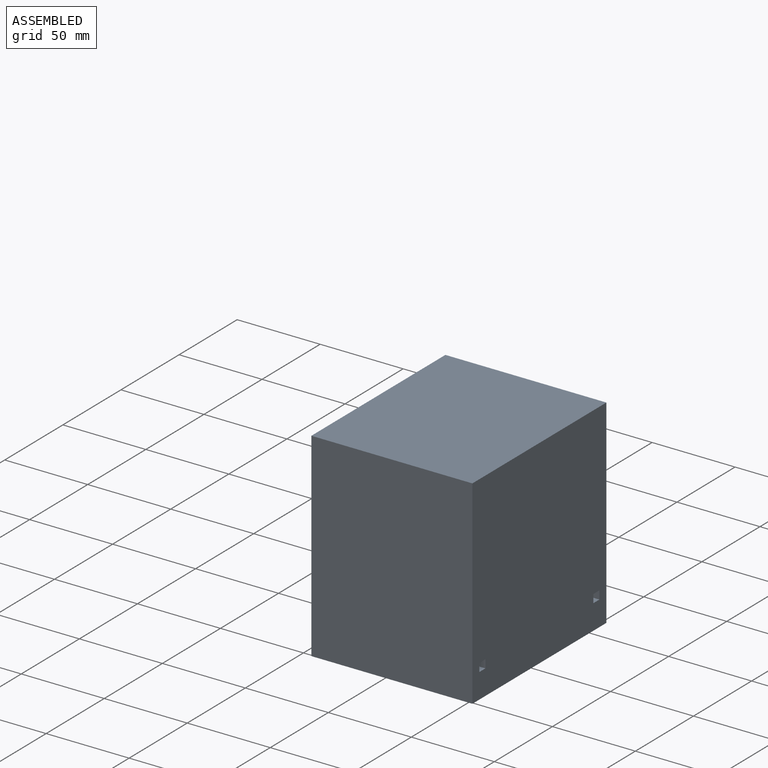
[diagram: assembled view]
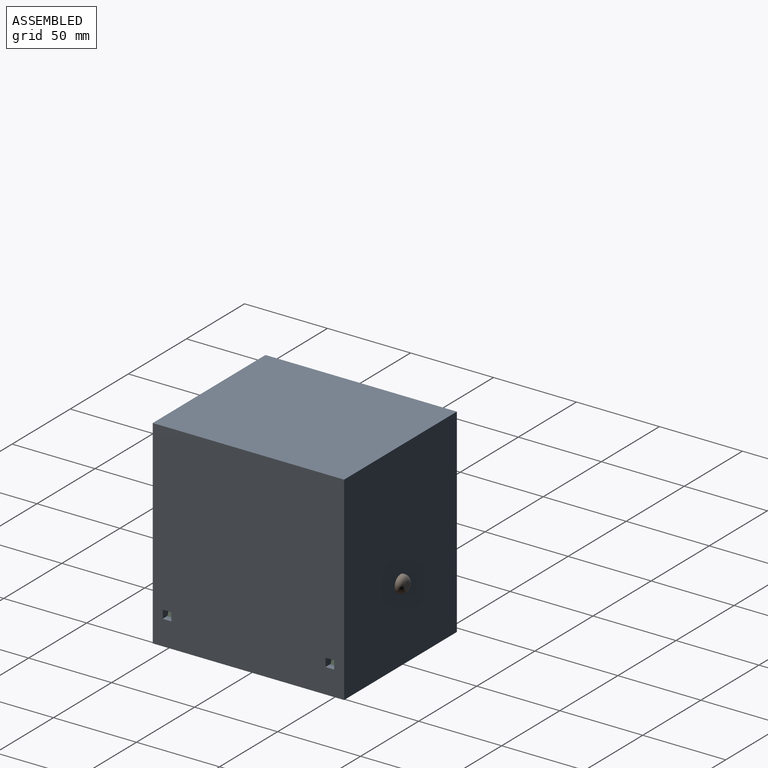
[diagram: assembled view, second angle]
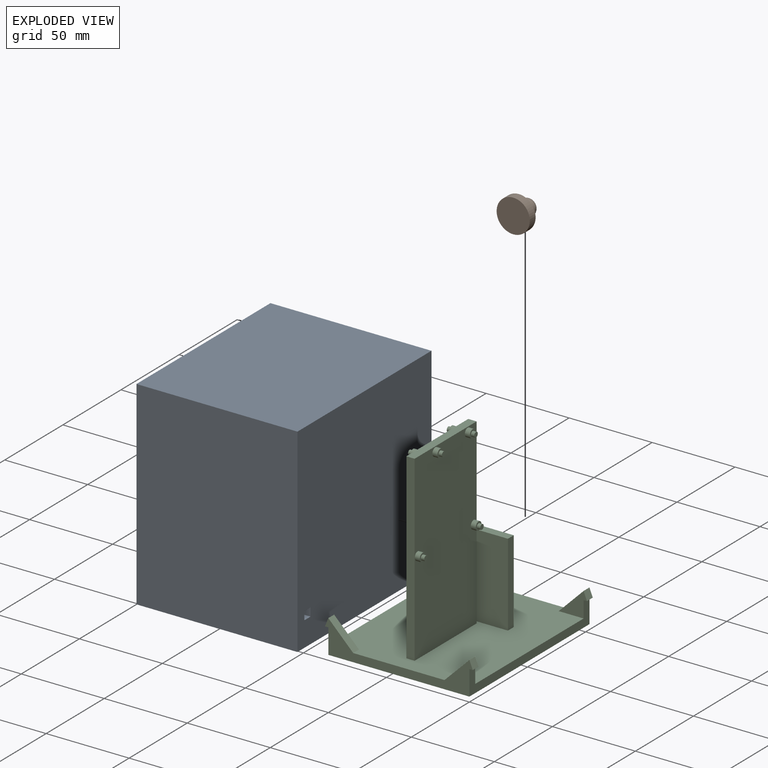
[diagram: exploded view]
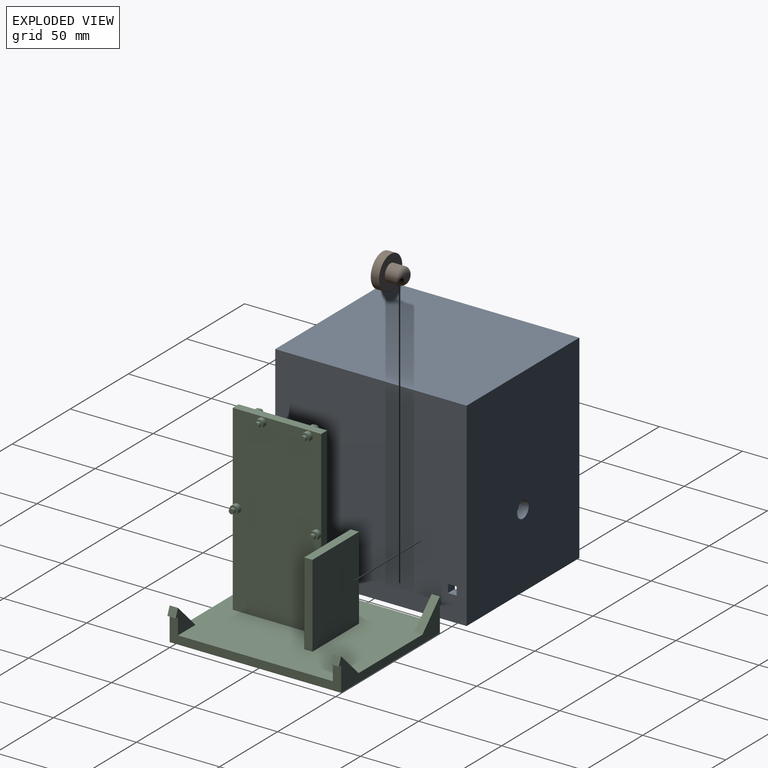
[diagram: exploded view, second angle]
ASSEMBLY  parts=3 mates=2
PART A: 28 faces, bbox 97x120x115.3 mm
  f0: plane 120x115.3mm, normal (1,0,0), area 13784mm2, adj f5,f6,f7,f9,f10,f11,f12,f13
  f1: plane 115x103.5mm, normal (1,0,0), area 11850.5mm2, adj f4,f5,f8,f17,f18,f19,f20,f21
  f2: plane 120x115.3mm, normal (-1,0,0), area 13784mm2, adj f5,f6,f7,f17,f18,f19,f20,f21
  f3: plane 115x103.5mm, normal (-1,0,0), area 11850.5mm2, adj f4,f5,f8,f9,f10,f11,f12,f13
  f4: plane 115x85.2mm, normal (0,0,1), area 9719.5mm2, adj f1,f3,f5,f25,f27
  f5: plane 115.3x97mm, normal (0,-1,0), area 2365.9mm2, adj f0,f1,f2,f3,f4,f6,f7,f8
  f6: plane 120x97mm, normal (0,0,-1), area 11561.5mm2, adj f0,f2,f5,f26,f27
  f7: plane 120x97mm, normal (0,0,1), area 11640mm2, adj f0,f2,f5,f26
  f8: plane 115x85.2mm, normal (0,0,-1), area 9798mm2, adj f1,f3,f5,f25
  f9: plane 5.9x5.2mm, normal (0,-1,0), area 30.7mm2, adj f0,f3,f10,f11
  f10: plane 5.9x5mm, normal (0,0,1), area 29.5mm2, adj f0,f3,f9,f12
  f11: plane 5.9x5mm, normal (0,0,-1), area 29.5mm2, adj f0,f3,f9,f12
  f12: plane 5.9x5.2mm, normal (0,1,0), area 30.7mm2, adj f0,f3,f10,f11
  f13: plane 5.9x5.2mm, normal (0,-1,0), area 30.7mm2, adj f0,f3,f14,f16
  f14: plane 5.9x5mm, normal (0,0,1), area 29.5mm2, adj f0,f3,f13,f15
  f15: plane 5.9x5.2mm, normal (0,1,0), area 30.7mm2, adj f0,f3,f14,f16
  f16: plane 5.9x5mm, normal (0,0,-1), area 29.5mm2, adj f0,f3,f13,f15
  f17: plane 5.9x5.2mm, normal (0,1,0), area 30.7mm2, adj f1,f2,f18,f19
  f18: plane 5.9x5mm, normal (0,0,-1), area 29.5mm2, adj f1,f2,f17,f20
  f19: plane 5.9x5mm, normal (0,0,1), area 29.5mm2, adj f1,f2,f17,f20
  f20: plane 5.9x5.2mm, normal (0,-1,0), area 30.7mm2, adj f1,f2,f18,f19
  f21: plane 5.9x5mm, normal (0,0,-1), area 29.5mm2, adj f1,f2,f22,f24
  f22: plane 5.9x5.2mm, normal (0,1,0), area 30.7mm2, adj f1,f2,f21,f23
  f23: plane 5.9x5mm, normal (0,0,1), area 29.5mm2, adj f1,f2,f22,f24
  f24: plane 5.9x5.2mm, normal (0,-1,0), area 30.7mm2, adj f1,f2,f21,f23
  f25: plane 103.5x85.2mm, normal (0,-1,0), area 8818.2mm2, adj f1,f3,f4,f8
  f26: plane 115.3x97mm, normal (0,1,0), area 11184.1mm2, adj f0,f2,f6,f7
  f27: cylinder r=5mm len=10mm, axis (0,0,-1), area 185.4mm2, adj f4,f6
PART B: 6 faces, bbox 20x15x20 mm
  f0: cylinder r=5mm len=10mm, axis (0,1,0), area 219.9mm2, adj f4,f5
  f1: plane 4x4mm, normal (0,-1,0), area 12.6mm2, adj f5
  f2: cylinder r=10mm len=20mm, axis (0,-1,0), area 314.2mm2, adj f3,f4
  f3: plane 20x20mm, normal (0,1,0), area 314.2mm2, adj f2
  f4: plane 20x20mm, normal (0,-1,0), area 235.6mm2, adj f0,f2
  f5: torus R=2mm, axis (0,-1,0), area 115.8mm2, adj f0,f1
PART C: 64 faces, bbox 89x115x103.3 mm
  f0: plane 103.3x85mm, normal (0,1,0), area 8014mm2, adj f1,f3,f4,f5,f38,f39,f40,f41
  f1: plane 110x5mm, normal (0,0,-1), area 550mm2, adj f0,f2,f4,f5
  f2: plane 53.3x5mm, normal (0,1,0), area 266.5mm2, adj f1,f3,f4,f5
  f3: plane 110x5mm, normal (0,0,1), area 550mm2, adj f0,f2,f4,f5
  f4: plane 110x53.3mm, normal (1,0,0), area 5784.5mm2, adj f0,f1,f2,f3,f7,f11,f15,f19
  f5: plane 110x53.3mm, normal (-1,0,0), area 5790.6mm2, adj f0,f1,f2,f3,f22,f26,f30,f34
  f6: plane 5x5mm, normal (1,0,0), area 12.6mm2, adj f7,f9
  f7: cylinder r=2.5mm len=5mm, axis (-1,0,0), area 47.1mm2, adj f4,f6
  f8: plane 3x3mm, normal (1,0,0), area 7.1mm2, adj f9
  f9: cylinder r=1.5mm len=3mm, axis (-1,0,0), area 18.8mm2, adj f6,f8
  f10: plane 5x5mm, normal (1,0,0), area 12.6mm2, adj f11,f13
  f11: cylinder r=2.5mm len=5mm, axis (-1,0,0), area 47.1mm2, adj f4,f10
  f12: plane 3x3mm, normal (1,0,0), area 7.1mm2, adj f13
  f13: cylinder r=1.5mm len=3mm, axis (-1,0,0), area 18.8mm2, adj f10,f12
  f14: plane 5x5mm, normal (1,0,0), area 12.6mm2, adj f15,f17
  f15: cylinder r=2.5mm len=5mm, axis (-1,0,0), area 47.1mm2, adj f4,f14
  f16: plane 3x3mm, normal (1,0,0), area 7.1mm2, adj f17
  f17: cylinder r=1.5mm len=3mm, axis (-1,0,0), area 18.8mm2, adj f14,f16
  f18: plane 5x5mm, normal (1,0,0), area 12.6mm2, adj f19,f21
  f19: cylinder r=2.5mm len=5mm, axis (-1,0,0), area 47.1mm2, adj f4,f18
  f20: plane 3x3mm, normal (1,0,0), area 7.1mm2, adj f21
  f21: cylinder r=1.5mm len=3mm, axis (-1,0,0), area 18.8mm2, adj f18,f20
  f22: cylinder r=2.4mm len=4.8mm, axis (1,0,0), area 45.2mm2, adj f5,f23
  f23: plane 4.8x4.8mm, normal (-1,0,0), area 11.9mm2, adj f22,f25
  f24: plane 2.8x2.8mm, normal (-1,0,0), area 6.2mm2, adj f25
  f25: cylinder r=1.4mm len=2.8mm, axis (1,0,0), area 17.6mm2, adj f23,f24
  f26: cylinder r=2.4mm len=4.8mm, axis (1,0,0), area 45.2mm2, adj f5,f27
  f27: plane 4.8x4.8mm, normal (-1,0,0), area 11.9mm2, adj f26,f29
  f28: plane 2.8x2.8mm, normal (-1,0,0), area 6.2mm2, adj f29
  f29: cylinder r=1.4mm len=2.8mm, axis (1,0,0), area 17.6mm2, adj f27,f28
  f30: cylinder r=2.4mm len=4.8mm, axis (1,0,0), area 45.2mm2, adj f5,f31
  f31: plane 4.8x4.8mm, normal (-1,0,0), area 11.9mm2, adj f30,f33
  f32: plane 2.8x2.8mm, normal (-1,0,0), area 6.2mm2, adj f33
  f33: cylinder r=1.4mm len=2.8mm, axis (1,0,0), area 17.6mm2, adj f31,f32
  f34: cylinder r=2.4mm len=4.8mm, axis (1,0,0), area 45.2mm2, adj f5,f35
  f35: plane 4.8x4.8mm, normal (-1,0,0), area 11.9mm2, adj f34,f37
  f36: plane 2.8x2.8mm, normal (-1,0,0), area 6.2mm2, adj f37
  f37: cylinder r=1.4mm len=2.8mm, axis (1,0,0), area 17.6mm2, adj f35,f36
  f38: plane 89x20mm, normal (0,0,-1), area 660mm2, adj f0,f39,f41,f42,f57,f58,f59,f61
  f39: plane 103.3x15mm, normal (1,0,0), area 616.5mm2, adj f0,f38,f40,f42,f48,f51,f56,f57
  f40: plane 89x20mm, normal (0,0,1), area 660mm2, adj f0,f39,f41,f42,f48,f49,f50,f52
  f41: plane 103.3x15mm, normal (-1,0,0), area 616.5mm2, adj f0,f38,f40,f42,f52,f55,f60,f61
  f42: plane 103.3x85mm, normal (0,-1,0), area 8780.5mm2, adj f38,f39,f40,f41
  f43: plane 50x40mm, normal (0,0,1), area 2000mm2, adj f0,f44,f46,f47
  f44: plane 50x5mm, normal (1,0,0), area 250mm2, adj f0,f43,f45,f47
  f45: plane 50x40mm, normal (0,0,-1), area 2000mm2, adj f0,f44,f46,f47
  f46: plane 50x5mm, normal (-1,0,0), area 250mm2, adj f0,f43,f45,f47
  f47: plane 40x5mm, normal (0,1,0), area 200mm2, adj f43,f44,f45,f46
  f48: plane 5x2mm, normal (0,-1,0), area 10mm2, adj f39,f40,f49,f51
  f49: plane 5x5mm, normal (0.93,0.37,0), area 26.9mm2, adj f40,f48,f50,f51
  f50: plane 15x15mm, normal (-0.71,0.71,0), area 106.1mm2, adj f0,f40,f49,f51
  f51: plane 17x15mm, normal (0,0,-1), area 117.5mm2, adj f0,f39,f48,f49,f50
  f52: plane 5x2mm, normal (0,-1,0), area 10mm2, adj f40,f41,f54,f55
  f53: plane 15x15mm, normal (0.71,0.71,0), area 106.1mm2, adj f0,f40,f54,f55
  f54: plane 5x5mm, normal (-0.93,0.37,0), area 26.9mm2, adj f40,f52,f53,f55
  f55: plane 17x15mm, normal (0,0,-1), area 117.5mm2, adj f0,f41,f52,f53,f54
  f56: plane 17x15mm, normal (0,0,1), area 117.5mm2, adj f0,f39,f57,f58,f59
  f57: plane 5x2mm, normal (0,-1,0), area 10mm2, adj f38,f39,f56,f58
  f58: plane 5x5mm, normal (0.93,0.37,0), area 26.9mm2, adj f38,f56,f57,f59
  f59: plane 15x15mm, normal (-0.71,0.71,0), area 106.1mm2, adj f0,f38,f56,f58
  f60: plane 17x15mm, normal (0,0,1), area 117.5mm2, adj f0,f41,f61,f62,f63
  f61: plane 5x2mm, normal (0,-1,0), area 10mm2, adj f38,f41,f60,f63
  f62: plane 15x15mm, normal (0.71,0.71,0), area 106.1mm2, adj f0,f38,f60,f63
  f63: plane 5x5mm, normal (-0.93,0.37,0), area 26.9mm2, adj f38,f60,f61,f62
PLACE A rot(axis=(1,0,0),90deg) t=(-45,63.3,115)mm
PLACE B rot(axis=(1,0,0),180deg) t=(-42.5,103.4,45)mm
PLACE C rot(axis=(1,0,0),90deg) t=(-45,63.3,115)mm
MATE cylindrical A.f27 <-> B.f2  axis (0,-1,0) through (-42.5,103.4,45)mm
MATE parallel A.f5 <-> C.f42  axis (0,0,-1) through (-42.5,51.65,0)mm
